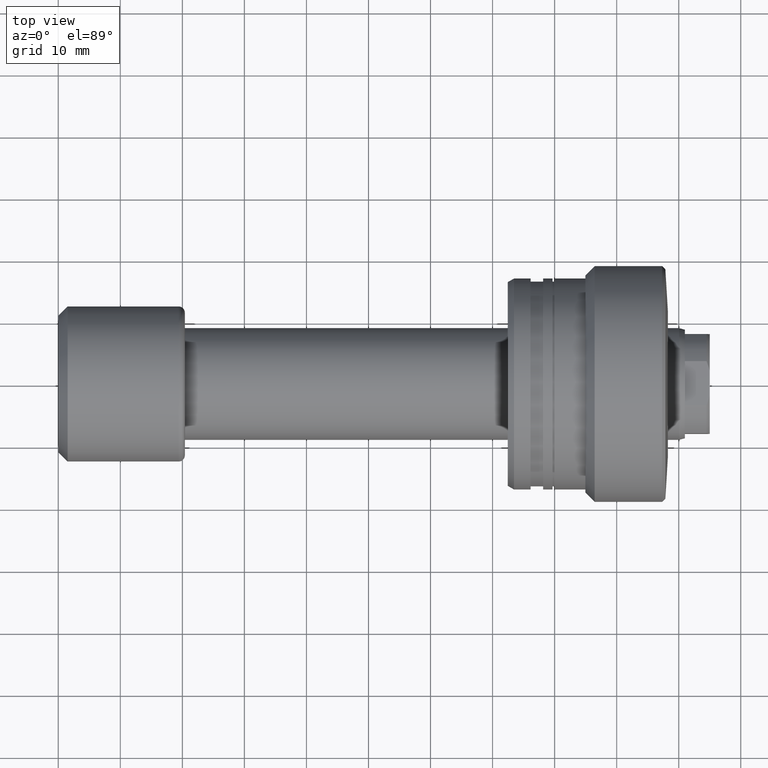
[diagram: clean part render]
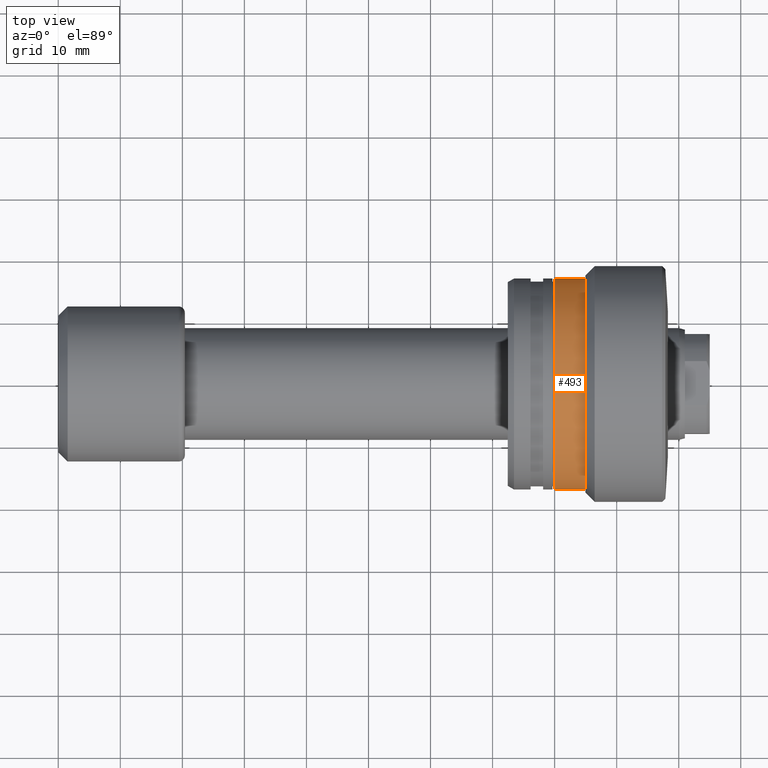
[diagram: same view with one face highlighted and labeled with its STEP entity id]
A machine part, top view. The second image highlights one B-rep face of the part: STEP entity #493.
In plain terms, the highlighted cylindrical surface (partial cylindrical patch) has radius 17 mm, axis along (-1, 0, 0).
Its self-contained STEP definition (entity closure, byte-faithful):
#86 = CARTESIAN_POINT ( 'NONE',  ( -13.99999999999999822, -17.00000000000000355, 0.000000000000000000 ) ) ;
#123 = EDGE_CURVE ( 'NONE', #1569, #1776, #2133, .T. ) ;
#212 = EDGE_LOOP ( 'NONE', ( #1421, #1853, #1631, #743 ) ) ;
#269 = CARTESIAN_POINT ( 'NONE',  ( -13.99999999999996447, 16.99999999999997158, 2.081899558550499096E-15 ) ) ;
#334 = VERTEX_POINT ( 'NONE', #269 ) ;
#349 = CIRCLE ( 'NONE', #1702, 16.99999999999999289 ) ;
#452 = CARTESIAN_POINT ( 'NONE',  ( -30.28002276692734185, -16.99999999999998934, 0.000000000000000000 ) ) ;
#493 = ADVANCED_FACE ( 'NONE', ( #615 ), #1349, .T. ) ;
#560 = DIRECTION ( 'NONE',  ( -1.020425574104004591E-15, -1.000000000000000000, 0.000000000000000000 ) ) ;
#615 = FACE_OUTER_BOUND ( 'NONE', #212, .T. ) ;
#743 = ORIENTED_EDGE ( 'NONE', *, *, #123, .F. ) ;
#834 = DIRECTION ( 'NONE',  ( -1.000000000000000000, 9.810081908519753690E-16, -0.000000000000000000 ) ) ;
#1046 = VERTEX_POINT ( 'NONE', #1992 ) ;
#1182 = DIRECTION ( 'NONE',  ( -1.000000000000000000, 9.810081908519753690E-16, -0.000000000000000000 ) ) ;
#1245 = AXIS2_PLACEMENT_3D ( 'NONE', #1995, #834, #1399 ) ;
#1316 = DIRECTION ( 'NONE',  ( -1.000000000000000000, 9.810081908519753690E-16, -0.000000000000000000 ) ) ;
#1349 = CYLINDRICAL_SURFACE ( 'NONE', #1245, 16.99999999999998934 ) ;
#1399 = DIRECTION ( 'NONE',  ( -1.020425574104004788E-15, -1.000000000000000000, 0.000000000000000000 ) ) ;
#1421 = ORIENTED_EDGE ( 'NONE', *, *, #1952, .T. ) ;
#1512 = DIRECTION ( 'NONE',  ( -1.020425574104004985E-15, -1.000000000000000000, 0.000000000000000000 ) ) ;
#1569 = VERTEX_POINT ( 'NONE', #86 ) ;
#1631 = ORIENTED_EDGE ( 'NONE', *, *, #1738, .F. ) ;
#1671 = CARTESIAN_POINT ( 'NONE',  ( -18.99999999999998224, -1.106579472735248521E-14, 0.000000000000000000 ) ) ;
#1702 = AXIS2_PLACEMENT_3D ( 'NONE', #1671, #2430, #560 ) ;
#1738 = EDGE_CURVE ( 'NONE', #1776, #1046, #349, .T. ) ;
#1772 = LINE ( 'NONE', #1784, #1854 ) ;
#1776 = VERTEX_POINT ( 'NONE', #2407 ) ;
#1784 = CARTESIAN_POINT ( 'NONE',  ( -30.28002276692730632, 16.99999999999998934, 2.081899558550499491E-15 ) ) ;
#1814 = CIRCLE ( 'NONE', #1979, 16.99999999999998579 ) ;
#1853 = ORIENTED_EDGE ( 'NONE', *, *, #2008, .T. ) ;
#1854 = VECTOR ( 'NONE', #2179, 1000.000000000000000 ) ;
#1868 = CARTESIAN_POINT ( 'NONE',  ( -13.99999999999998046, -1.597083568161236364E-14, 0.000000000000000000 ) ) ;
#1952 = EDGE_CURVE ( 'NONE', #1569, #334, #1814, .T. ) ;
#1979 = AXIS2_PLACEMENT_3D ( 'NONE', #1868, #1316, #1512 ) ;
#1992 = CARTESIAN_POINT ( 'NONE',  ( -18.99999999999996447, 16.99999999999998224, 2.081899558550499885E-15 ) ) ;
#1995 = CARTESIAN_POINT ( 'NONE',  ( -30.28002276692732408, 0.000000000000000000, 0.000000000000000000 ) ) ;
#2008 = EDGE_CURVE ( 'NONE', #334, #1046, #1772, .T. ) ;
#2133 = LINE ( 'NONE', #452, #2157 ) ;
#2157 = VECTOR ( 'NONE', #1182, 1000.000000000000000 ) ;
#2179 = DIRECTION ( 'NONE',  ( -1.000000000000000000, 9.810081908519753690E-16, -0.000000000000000000 ) ) ;
#2407 = CARTESIAN_POINT ( 'NONE',  ( -19.00000000000000000, -17.00000000000000355, 0.000000000000000000 ) ) ;
#2430 = DIRECTION ( 'NONE',  ( -1.000000000000000000, 9.810081908519753690E-16, -0.000000000000000000 ) ) ;